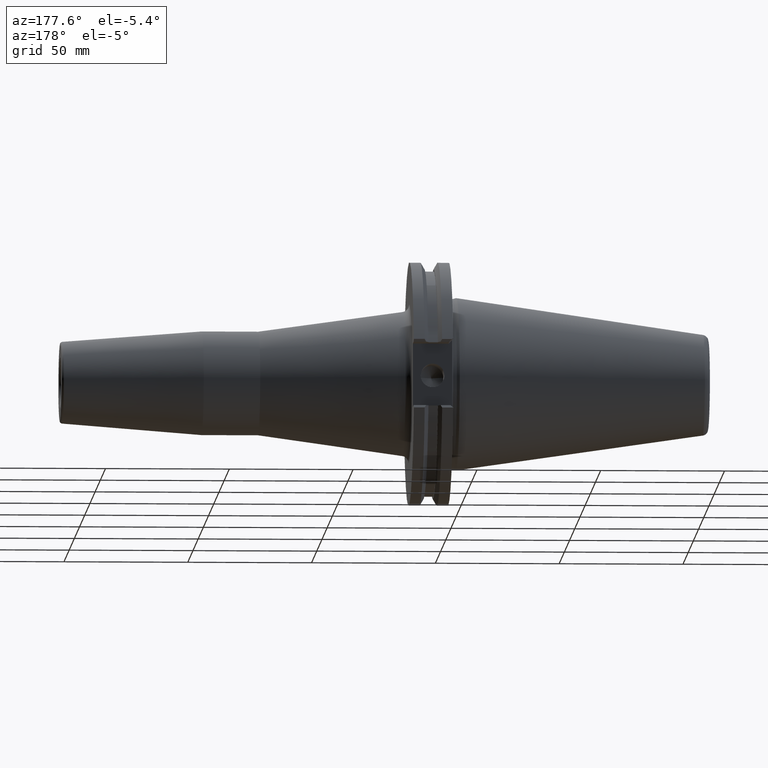
[diagram: clean part render]
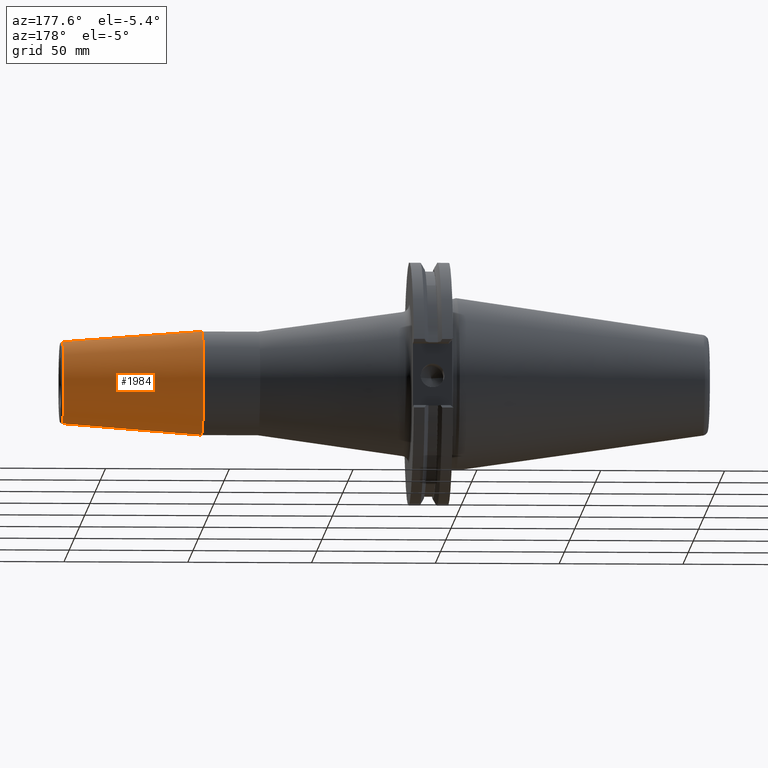
[diagram: same view with one face highlighted and labeled with its STEP entity id]
A machine part, auxiliary view. The second image highlights one B-rep face of the part: STEP entity #1984.
In plain terms, the highlighted conical surface has half-angle 4.5 deg.
Its self-contained STEP definition (entity closure, byte-faithful):
#422=DIRECTION('',(-9.969173337331E-1,0.E0,-7.845909572785E-2));
#423=VECTOR('',#422,5.643033630266E1);
#424=CARTESIAN_POINT('',(1.590784590957E2,0.E0,-1.657252684207E1));
#425=LINE('',#424,#423);
#426=DIRECTION('',(-9.969173337331E-1,0.E0,7.845909572785E-2));
#427=VECTOR('',#426,5.643033630266E1);
#428=CARTESIAN_POINT('',(1.590784590957E2,0.E0,1.657252684207E1));
#429=LINE('',#428,#427);
#435=CARTESIAN_POINT('',(1.590784590957E2,0.E0,0.E0));
#436=DIRECTION('',(1.E0,0.E0,0.E0));
#437=DIRECTION('',(0.E0,0.E0,-1.E0));
#438=AXIS2_PLACEMENT_3D('',#435,#436,#437);
#440=CARTESIAN_POINT('',(1.028220786872E2,0.E0,0.E0));
#441=DIRECTION('',(1.E0,0.E0,0.E0));
#442=DIRECTION('',(0.E0,0.E0,-1.E0));
#443=AXIS2_PLACEMENT_3D('',#440,#441,#442);
#1257=CARTESIAN_POINT('',(1.590784590957E2,0.E0,-1.657252684207E1));
#1258=CARTESIAN_POINT('',(1.028220786872E2,0.E0,-2.1E1));
#1259=VERTEX_POINT('',#1257);
#1260=VERTEX_POINT('',#1258);
#1281=CARTESIAN_POINT('',(1.590784590957E2,0.E0,1.657252684207E1));
#1282=CARTESIAN_POINT('',(1.028220786872E2,0.E0,2.1E1));
#1283=VERTEX_POINT('',#1281);
#1284=VERTEX_POINT('',#1282);
#1972=CARTESIAN_POINT('',(1.309502688915E2,0.E0,0.E0));
#1973=DIRECTION('',(-1.E0,0.E0,0.E0));
#1974=DIRECTION('',(0.E0,0.E0,-1.E0));
#1975=AXIS2_PLACEMENT_3D('',#1972,#1973,#1974);
#1976=CONICAL_SURFACE('',#1975,1.878626342104E1,4.5E0);
#1977=ORIENTED_EDGE('',*,*,#1962,.F.);
#1978=ORIENTED_EDGE('',*,*,#1939,.T.);
#1979=ORIENTED_EDGE('',*,*,#1966,.T.);
#1981=ORIENTED_EDGE('',*,*,#1980,.F.);
#1982=EDGE_LOOP('',(#1977,#1978,#1979,#1981));
#1983=FACE_OUTER_BOUND('',#1982,.F.);
#1984=ADVANCED_FACE('',(#1983),#1976,.T.);
#439=CIRCLE('',#438,1.657252684207E1);
#444=CIRCLE('',#443,2.1E1);
#1939=EDGE_CURVE('',#1259,#1283,#439,.T.);
#1962=EDGE_CURVE('',#1259,#1260,#425,.T.);
#1966=EDGE_CURVE('',#1283,#1284,#429,.T.);
#1980=EDGE_CURVE('',#1260,#1284,#444,.T.);